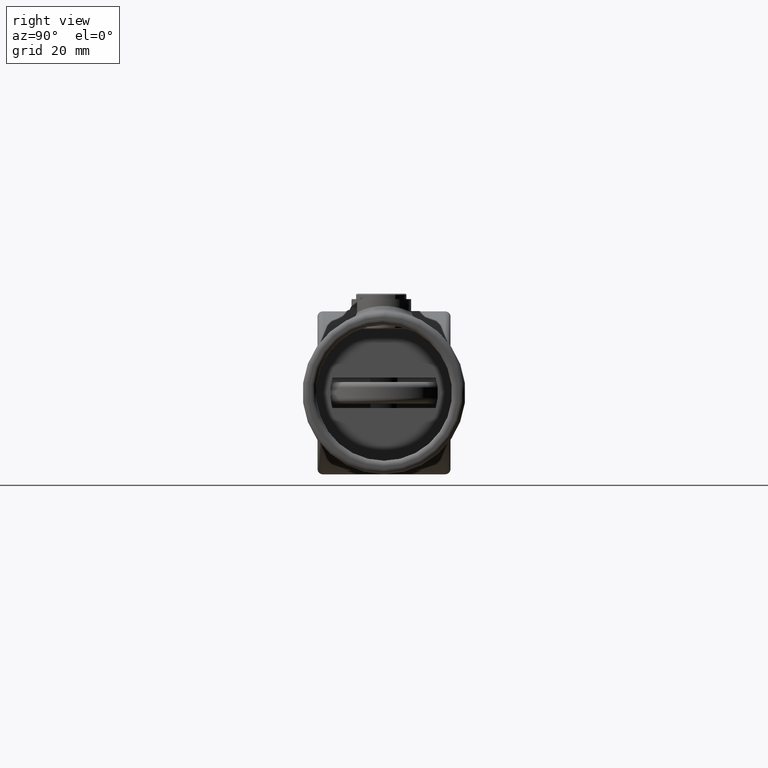
[diagram: clean part render]
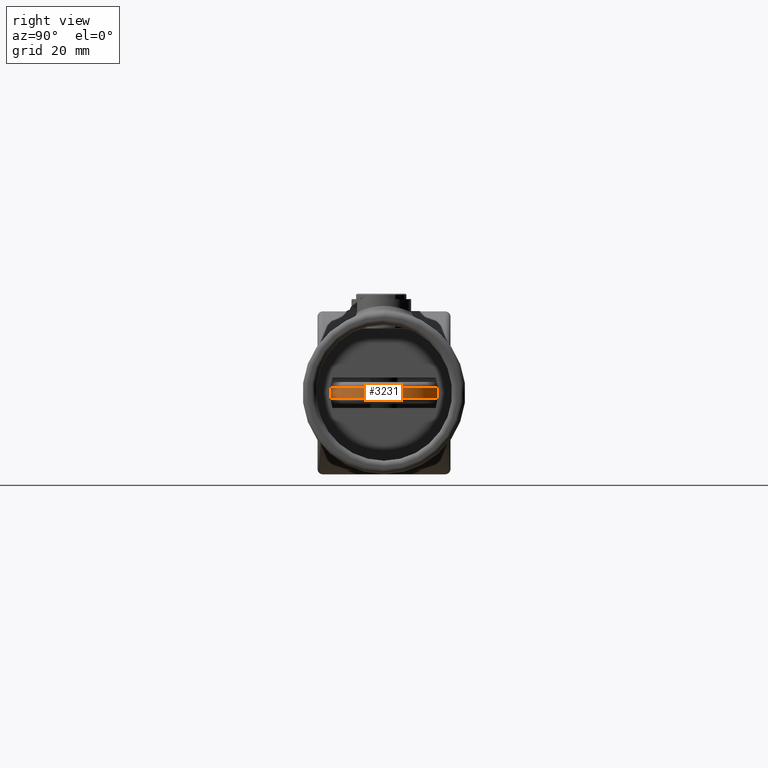
[diagram: same view with one face highlighted and labeled with its STEP entity id]
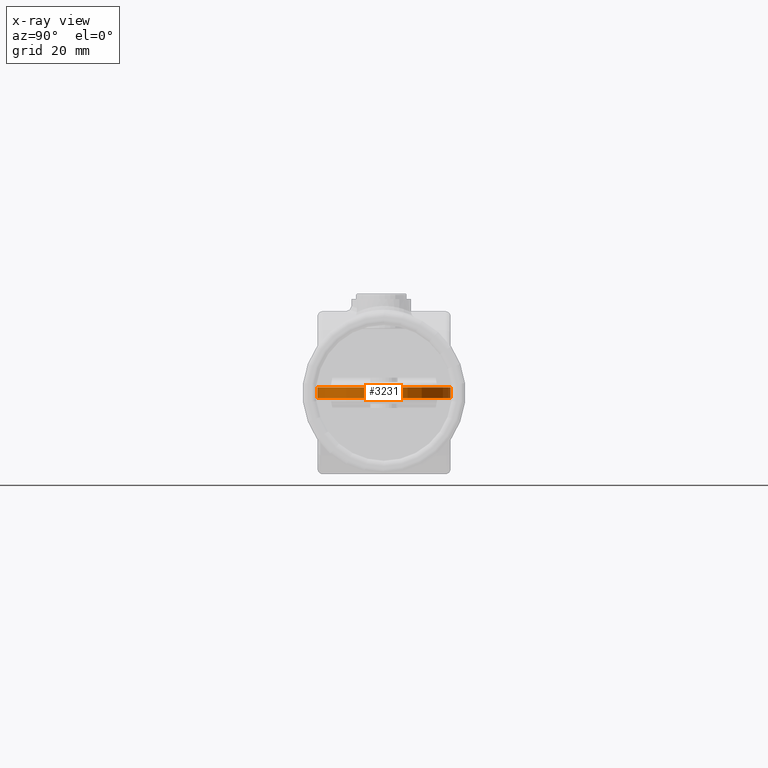
[diagram: x-ray of the same camera — body ghosted, the highlighted face saturated]
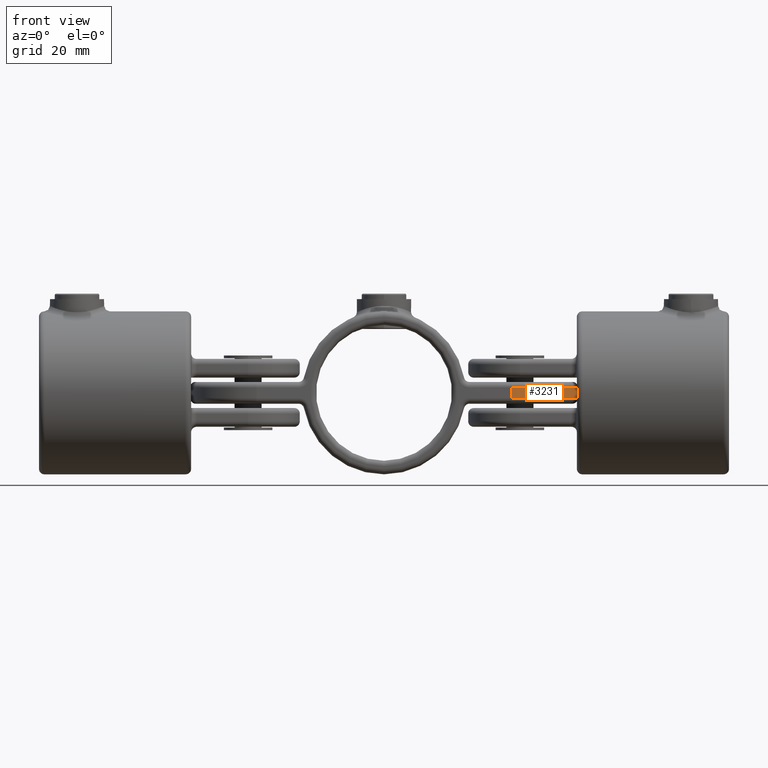
[diagram: same view with one face highlighted and labeled with its STEP entity id]
A machine part, right view. The second image highlights one B-rep face of the part: STEP entity #3231.
The next image is the same camera in x-ray: the body ghosted, the highlighted face saturated — about 0% of this face is hidden behind the body in this view.
A second angle (front view) of the same face is appended — the face is thin or edge-on in the first view.
In plain terms, the highlighted cylindrical surface (partial cylindrical patch) has radius 24.5 mm, axis along (-0, -0, -1).
Its self-contained STEP definition (entity closure, byte-faithful):
#50 = DIRECTION ( 'NONE',  ( -0.000000000000000000, -0.000000000000000000, -1.000000000000000000 ) ) ;
#467 = EDGE_LOOP ( 'NONE', ( #4814, #727, #5213, #4808 ) ) ;
#590 = VERTEX_POINT ( 'NONE', #2588 ) ;
#703 = CYLINDRICAL_SURFACE ( 'NONE', #1072, 24.50000000000000000 ) ;
#727 = ORIENTED_EDGE ( 'NONE', *, *, #3823, .T. ) ;
#851 = DIRECTION ( 'NONE',  ( -0.000000000000000000, -0.000000000000000000, -1.000000000000000000 ) ) ;
#1072 = AXIS2_PLACEMENT_3D ( 'NONE', #5066, #4624, #3670 ) ;
#1215 = CIRCLE ( 'NONE', #2596, 24.50000000000000711 ) ;
#1244 = CARTESIAN_POINT ( 'NONE',  ( 47.00000000000000000, 49.00000000000000000, 4.000000000000000000 ) ) ;
#1642 = AXIS2_PLACEMENT_3D ( 'NONE', #5311, #50, #4291 ) ;
#1681 = CARTESIAN_POINT ( 'NONE',  ( 47.00000000000000000, 49.00000000000000000, 2.000000000000000000 ) ) ;
#2119 = LINE ( 'NONE', #1244, #2339 ) ;
#2209 = CARTESIAN_POINT ( 'NONE',  ( 47.00000000000000000, 24.50000000000000000, -2.000000000000000000 ) ) ;
#2339 = VECTOR ( 'NONE', #5003, 1000.000000000000000 ) ;
#2380 = VERTEX_POINT ( 'NONE', #3942 ) ;
#2588 = CARTESIAN_POINT ( 'NONE',  ( 46.99999999999999289, 0.000000000000000000, 2.000000000000000000 ) ) ;
#2596 = AXIS2_PLACEMENT_3D ( 'NONE', #2209, #5356, #2982 ) ;
#2814 = CARTESIAN_POINT ( 'NONE',  ( 46.99999999999999289, 0.000000000000000000, 4.000000000000000000 ) ) ;
#2982 = DIRECTION ( 'NONE',  ( 1.000000000000000000, 0.000000000000000000, 0.000000000000000000 ) ) ;
#3231 = ADVANCED_FACE ( 'NONE', ( #5842 ), #703, .T. ) ;
#3604 = CIRCLE ( 'NONE', #1642, 24.50000000000000711 ) ;
#3670 = DIRECTION ( 'NONE',  ( -1.000000000000000000, 0.000000000000000000, 0.000000000000000000 ) ) ;
#3823 = EDGE_CURVE ( 'NONE', #5504, #2380, #1215, .T. ) ;
#3880 = VECTOR ( 'NONE', #851, 1000.000000000000000 ) ;
#3942 = CARTESIAN_POINT ( 'NONE',  ( 47.00000000000000000, 49.00000000000000000, -2.000000000000000000 ) ) ;
#3972 = CARTESIAN_POINT ( 'NONE',  ( 46.99999999999999289, 0.000000000000000000, -2.000000000000000000 ) ) ;
#4063 = VERTEX_POINT ( 'NONE', #1681 ) ;
#4291 = DIRECTION ( 'NONE',  ( 1.000000000000000000, 0.000000000000000000, 0.000000000000000000 ) ) ;
#4304 = EDGE_CURVE ( 'NONE', #590, #5504, #5160, .T. ) ;
#4624 = DIRECTION ( 'NONE',  ( -0.000000000000000000, -0.000000000000000000, -1.000000000000000000 ) ) ;
#4808 = ORIENTED_EDGE ( 'NONE', *, *, #5724, .T. ) ;
#4814 = ORIENTED_EDGE ( 'NONE', *, *, #4304, .T. ) ;
#5003 = DIRECTION ( 'NONE',  ( -0.000000000000000000, -0.000000000000000000, -1.000000000000000000 ) ) ;
#5066 = CARTESIAN_POINT ( 'NONE',  ( 47.00000000000000000, 24.50000000000000000, 4.000000000000000000 ) ) ;
#5160 = LINE ( 'NONE', #2814, #3880 ) ;
#5213 = ORIENTED_EDGE ( 'NONE', *, *, #6109, .F. ) ;
#5311 = CARTESIAN_POINT ( 'NONE',  ( 47.00000000000000000, 24.50000000000000000, 2.000000000000000000 ) ) ;
#5356 = DIRECTION ( 'NONE',  ( 0.000000000000000000, 0.000000000000000000, 1.000000000000000000 ) ) ;
#5504 = VERTEX_POINT ( 'NONE', #3972 ) ;
#5724 = EDGE_CURVE ( 'NONE', #4063, #590, #3604, .T. ) ;
#5842 = FACE_OUTER_BOUND ( 'NONE', #467, .T. ) ;
#6109 = EDGE_CURVE ( 'NONE', #4063, #2380, #2119, .T. ) ;